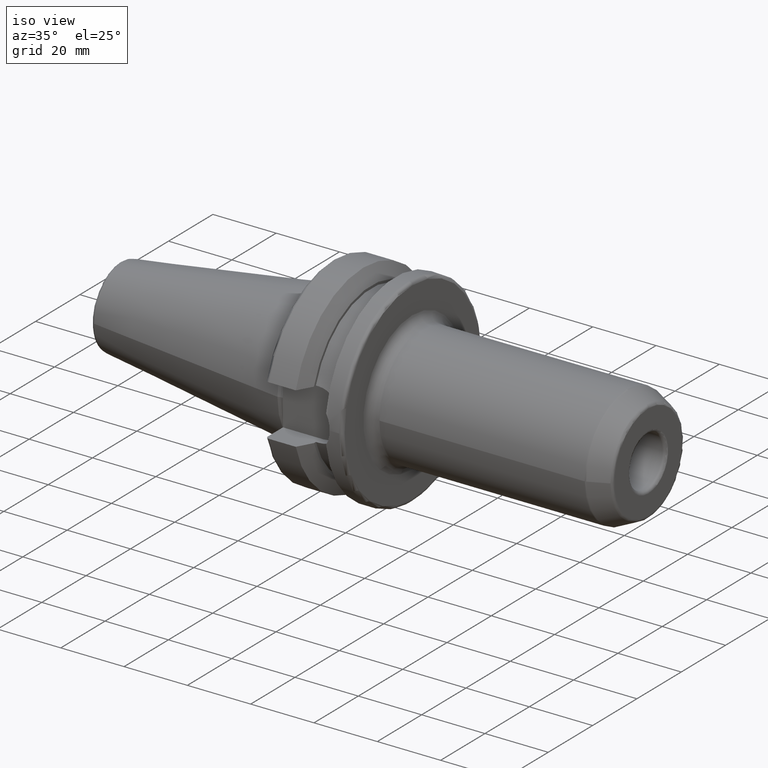
[diagram: clean part render]
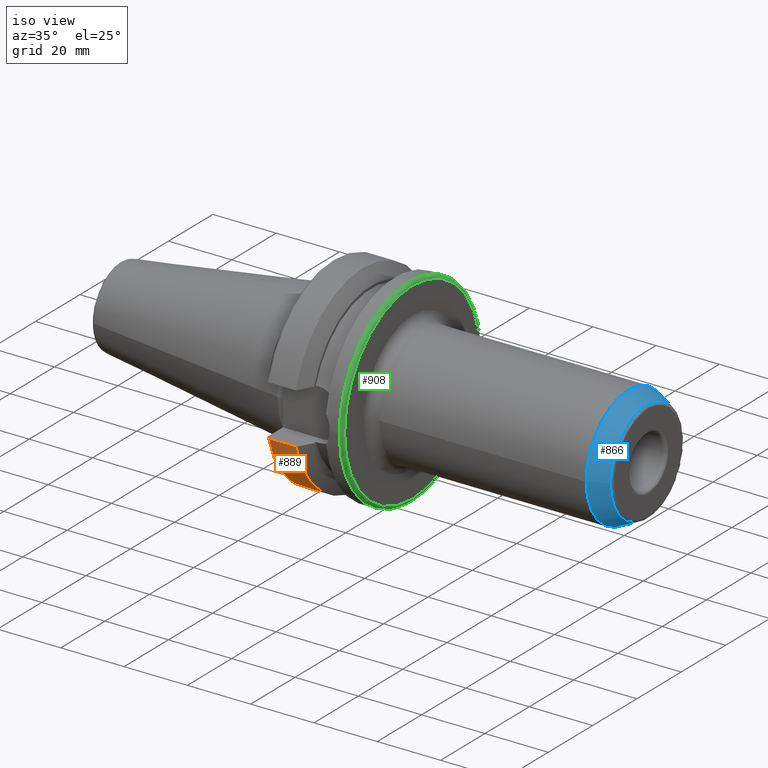
[diagram: same view with three faces highlighted in distinct colors, each labeled with its STEP entity id]
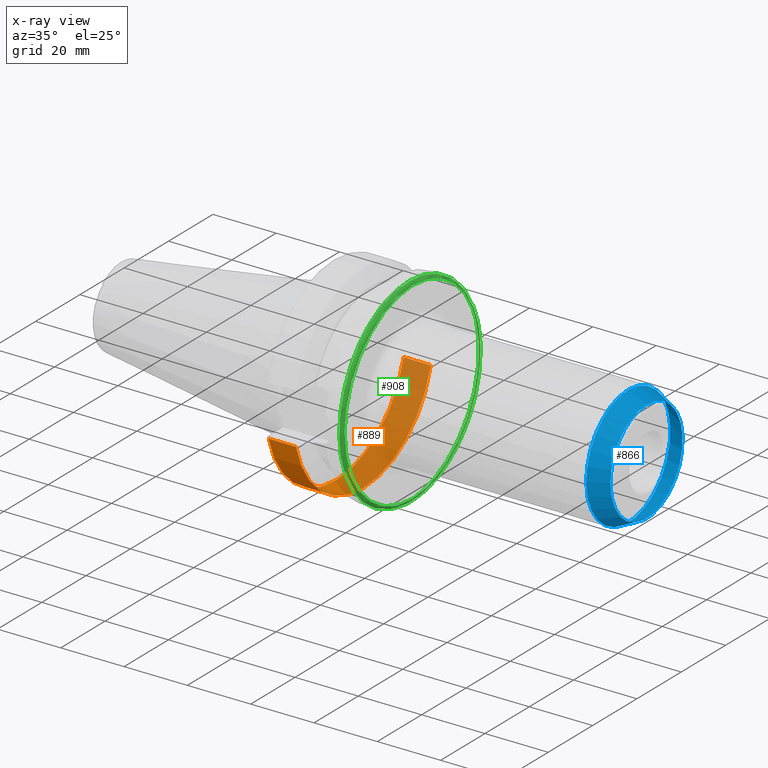
[diagram: x-ray of the same camera — body ghosted, the three highlighted faces saturated]
A machine part, iso view with three faces highlighted in distinct colors.
The next image is the same camera in x-ray (body ghosted, the three faces saturated) — at least one of them is partly hidden behind the body in this view.
Their STEP definitions:

[orange] entity #889 — the highlighted cylindrical surface (partial cylindrical patch) has radius 31.5 mm, axis along (1, 0, 0).
#69=LINE('',#1591,#115);
#76=LINE('',#1656,#122);
#115=VECTOR('',#1175,10.);
#122=VECTOR('',#1218,10.);
#149=CYLINDRICAL_SURFACE('',#1002,31.5);
#209=FACE_OUTER_BOUND('',#268,.T.);
#268=EDGE_LOOP('',(#724,#725,#726,#727));
#333=CIRCLE('',#1001,31.5000000000001);
#334=CIRCLE('',#1003,31.5);
#409=VERTEX_POINT('',#1579);
#410=VERTEX_POINT('',#1590);
#421=VERTEX_POINT('',#1648);
#422=VERTEX_POINT('',#1654);
#512=EDGE_CURVE('',#410,#409,#69,.T.);
#531=EDGE_CURVE('',#410,#421,#333,.T.);
#533=EDGE_CURVE('',#409,#422,#334,.T.);
#534=EDGE_CURVE('',#422,#421,#76,.T.);
#724=ORIENTED_EDGE('',*,*,#512,.T.);
#725=ORIENTED_EDGE('',*,*,#533,.T.);
#726=ORIENTED_EDGE('',*,*,#534,.T.);
#727=ORIENTED_EDGE('',*,*,#531,.F.);
#889=ADVANCED_FACE('',(#209),#149,.T.);
#1001=AXIS2_PLACEMENT_3D('',#1649,#1212,#1213);
#1002=AXIS2_PLACEMENT_3D('',#1653,#1214,#1215);
#1003=AXIS2_PLACEMENT_3D('',#1655,#1216,#1217);
#1175=DIRECTION('',(-1.,0.,0.));
#1212=DIRECTION('center_axis',(1.,0.,0.));
#1213=DIRECTION('ref_axis',(0.,0.,-1.));
#1214=DIRECTION('center_axis',(1.,0.,0.));
#1215=DIRECTION('ref_axis',(0.,1.,0.));
#1216=DIRECTION('center_axis',(1.,0.,0.));
#1217=DIRECTION('ref_axis',(0.,0.,-1.));
#1218=DIRECTION('',(1.,0.,0.));
#1579=CARTESIAN_POINT('',(2.99999999999999,-30.4540227227866,-8.05));
#1590=CARTESIAN_POINT('',(11.5690363073382,-30.4540227227866,-8.05));
#1591=CARTESIAN_POINT('',(7.28451815366907,-30.4540227227866,-8.05));
#1648=CARTESIAN_POINT('',(11.5690363073382,30.4540227227866,-8.05));
#1649=CARTESIAN_POINT('Origin',(11.5690363073382,0.,0.));
#1653=CARTESIAN_POINT('Origin',(7.28451815366907,0.,0.));
#1654=CARTESIAN_POINT('',(2.99999999999999,30.4540227227866,-8.05));
#1655=CARTESIAN_POINT('Origin',(2.99999999999999,0.,0.));
#1656=CARTESIAN_POINT('',(7.28451815366907,30.4540227227866,-8.05));

[blue] entity #866 — the highlighted conical surface has half-angle 25 deg.
#19=CONICAL_SURFACE('',#951,17.525,0.436332312998582);
#49=LINE('',#1402,#95);
#95=VECTOR('',#1087,17.525);
#186=FACE_OUTER_BOUND('',#241,.T.);
#241=EDGE_LOOP('',(#603,#604,#605,#606,#607,#608));
#304=CIRCLE('',#949,16.2692375262292);
#305=CIRCLE('',#950,16.2692375262292);
#306=CIRCLE('',#952,18.9563077870367);
#307=CIRCLE('',#953,18.9563077870367);
#369=VERTEX_POINT('',#1395);
#370=VERTEX_POINT('',#1397);
#371=VERTEX_POINT('',#1401);
#372=VERTEX_POINT('',#1403);
#460=EDGE_CURVE('',#369,#370,#304,.T.);
#461=EDGE_CURVE('',#370,#369,#305,.T.);
#462=EDGE_CURVE('',#370,#371,#49,.T.);
#463=EDGE_CURVE('',#372,#371,#306,.T.);
#464=EDGE_CURVE('',#371,#372,#307,.T.);
#603=ORIENTED_EDGE('',*,*,#461,.F.);
#604=ORIENTED_EDGE('',*,*,#462,.T.);
#605=ORIENTED_EDGE('',*,*,#463,.F.);
#606=ORIENTED_EDGE('',*,*,#464,.F.);
#607=ORIENTED_EDGE('',*,*,#462,.F.);
#608=ORIENTED_EDGE('',*,*,#460,.F.);
#866=ADVANCED_FACE('',(#186),#19,.T.);
#949=AXIS2_PLACEMENT_3D('',#1398,#1081,#1082);
#950=AXIS2_PLACEMENT_3D('',#1399,#1083,#1084);
#951=AXIS2_PLACEMENT_3D('',#1400,#1085,#1086);
#952=AXIS2_PLACEMENT_3D('',#1404,#1088,#1089);
#953=AXIS2_PLACEMENT_3D('',#1405,#1090,#1091);
#1081=DIRECTION('center_axis',(1.,0.,0.));
#1082=DIRECTION('ref_axis',(0.,-1.,3.06161699786838E-17));
#1083=DIRECTION('center_axis',(1.,0.,0.));
#1084=DIRECTION('ref_axis',(0.,-1.,3.06161699786838E-17));
#1085=DIRECTION('center_axis',(-1.,0.,0.));
#1086=DIRECTION('ref_axis',(0.,1.,0.));
#1087=DIRECTION('',(-0.90630778703665,-0.422618261740699,-5.17558101501966E-17));
#1088=DIRECTION('center_axis',(-1.,0.,0.));
#1089=DIRECTION('ref_axis',(0.,-1.,3.06161699786838E-17));
#1090=DIRECTION('center_axis',(-1.,0.,0.));
#1091=DIRECTION('ref_axis',(0.,-1.,3.06161699786838E-17));
#1395=CARTESIAN_POINT('',(101.022618261741,-1.99240696610646E-15,16.2692375262292));
#1397=CARTESIAN_POINT('',(101.022618261741,-16.2692375262292,-1.99240696610646E-15));
#1398=CARTESIAN_POINT('Origin',(101.022618261741,0.,-2.49050870763307E-15));
#1399=CARTESIAN_POINT('Origin',(101.022618261741,0.,-2.49050870763307E-15));
#1400=CARTESIAN_POINT('Origin',(98.3296269462229,0.,0.));
#1401=CARTESIAN_POINT('',(95.2601774915436,-18.9563077870367,-2.32147816550465E-15));
#1402=CARTESIAN_POINT('',(98.3296269462229,-17.525,-2.14619351550574E-15));
#1403=CARTESIAN_POINT('',(95.2601774915436,-2.32147816550465E-15,18.9563077870367));
#1404=CARTESIAN_POINT('Origin',(95.2601774915436,0.,-2.90184770688081E-15));
#1405=CARTESIAN_POINT('Origin',(95.2601774915436,0.,-2.90184770688081E-15));

[green] entity #908 — the highlighted toroidal blend (fillet) surface has major radius 30.5 mm and minor (blend) radius 1 mm.
#228=FACE_OUTER_BOUND('',#288,.T.);
#288=EDGE_LOOP('',(#825,#826,#827,#828,#829));
#315=CIRCLE('',#965,30.5);
#325=CIRCLE('',#988,31.5);
#328=CIRCLE('',#991,31.5);
#354=CIRCLE('',#1042,1.00000000000001);
#380=VERTEX_POINT('',#1462);
#412=VERTEX_POINT('',#1600);
#413=VERTEX_POINT('',#1601);
#475=EDGE_CURVE('',#380,#380,#315,.T.);
#516=EDGE_CURVE('',#412,#413,#325,.T.);
#521=EDGE_CURVE('',#413,#412,#328,.T.);
#573=EDGE_CURVE('',#380,#413,#354,.T.);
#825=ORIENTED_EDGE('',*,*,#475,.F.);
#826=ORIENTED_EDGE('',*,*,#573,.T.);
#827=ORIENTED_EDGE('',*,*,#521,.T.);
#828=ORIENTED_EDGE('',*,*,#516,.T.);
#829=ORIENTED_EDGE('',*,*,#573,.F.);
#860=TOROIDAL_SURFACE('',#1041,30.5,1.00000000000001);
#908=ADVANCED_FACE('',(#228),#860,.T.);
#965=AXIS2_PLACEMENT_3D('',#1463,#1115,#1116);
#988=AXIS2_PLACEMENT_3D('',#1602,#1182,#1183);
#991=AXIS2_PLACEMENT_3D('',#1618,#1189,#1190);
#1041=AXIS2_PLACEMENT_3D('',#1764,#1307,#1308);
#1042=AXIS2_PLACEMENT_3D('',#1765,#1309,#1310);
#1115=DIRECTION('center_axis',(1.,0.,0.));
#1116=DIRECTION('ref_axis',(0.,0.,-1.));
#1182=DIRECTION('center_axis',(1.,0.,0.));
#1183=DIRECTION('ref_axis',(0.,0.,-1.));
#1189=DIRECTION('center_axis',(1.,0.,0.));
#1190=DIRECTION('ref_axis',(0.,0.,-1.));
#1307=DIRECTION('center_axis',(1.,0.,0.));
#1308=DIRECTION('ref_axis',(0.,0.,-1.));
#1309=DIRECTION('center_axis',(0.,-1.,-1.22464679914735E-16));
#1310=DIRECTION('ref_axis',(0.,-1.22464679914735E-16,1.));
#1462=CARTESIAN_POINT('',(27.,-3.73517273739943E-15,30.5));
#1463=CARTESIAN_POINT('Origin',(27.,0.,0.));
#1600=CARTESIAN_POINT('',(26.,-31.5,-3.85763741731416E-15));
#1601=CARTESIAN_POINT('',(26.,-3.85763741731416E-15,31.5));
#1602=CARTESIAN_POINT('Origin',(26.,0.,0.));
#1618=CARTESIAN_POINT('Origin',(26.,0.,0.));
#1764=CARTESIAN_POINT('Origin',(26.,0.,0.));
#1765=CARTESIAN_POINT('Origin',(26.,-3.73517273739943E-15,30.5));